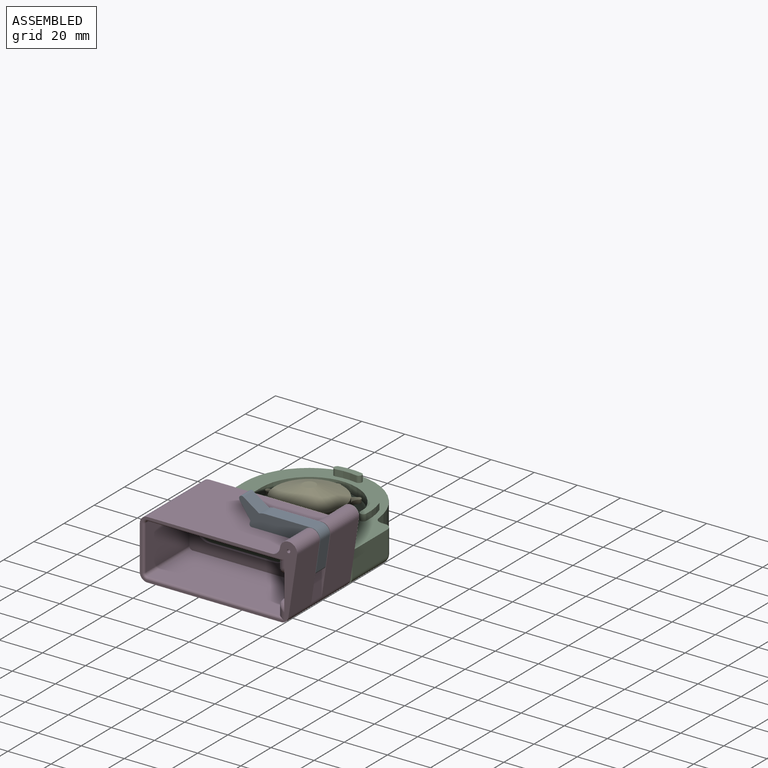
[diagram: assembled view]
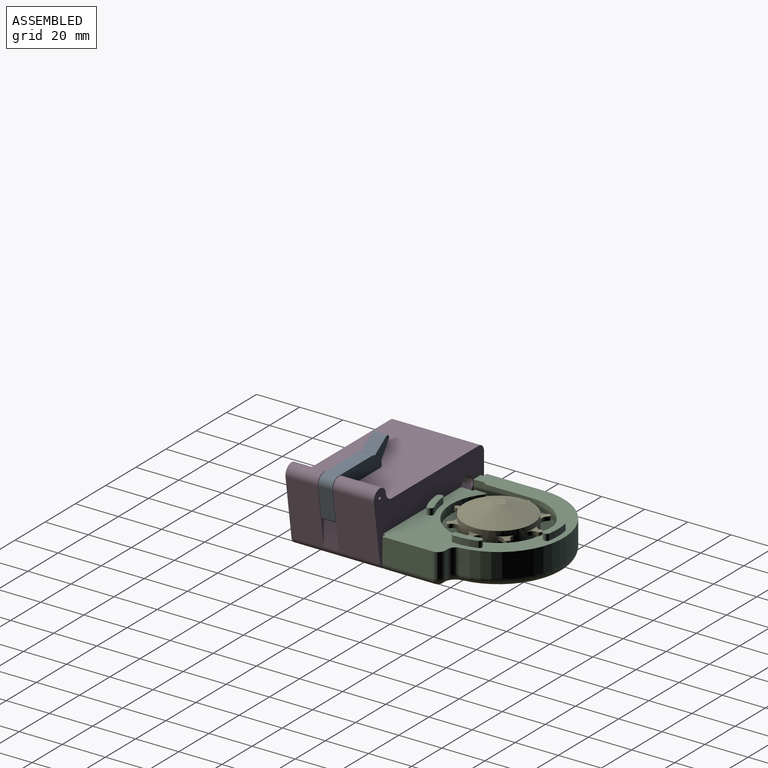
[diagram: assembled view, second angle]
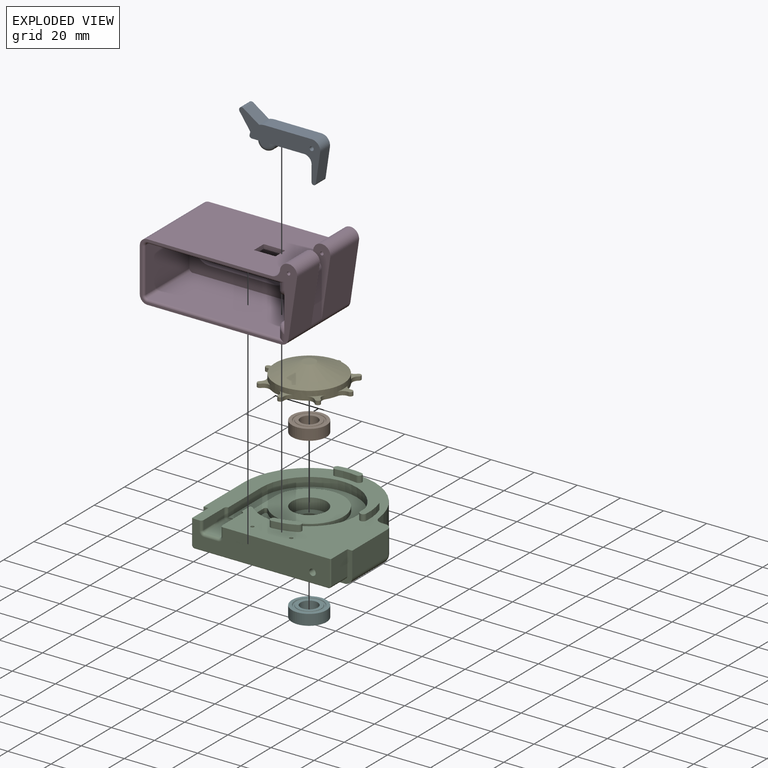
[diagram: exploded view]
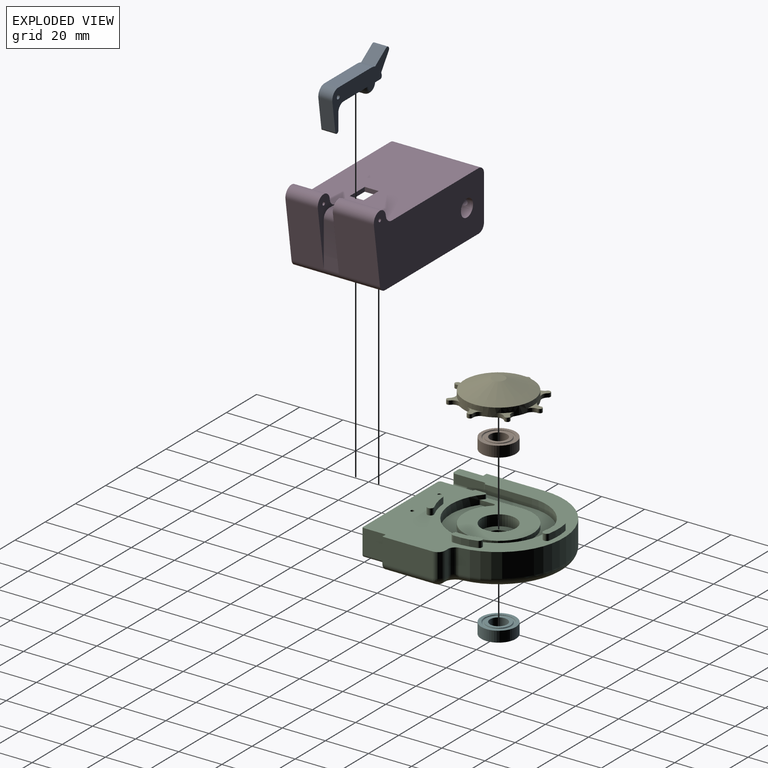
[diagram: exploded view, second angle]
ASSEMBLY  parts=6 mates=9
PART A: 20 faces, bbox 37.6x23.8x6.5 mm
  f0: plane 37.63x23.77mm, normal (0,0,1), area 292.8mm2, adj f1,f2,f3,f4,f5,f6,f7,f8
  f1: plane 13.58x6.5mm, normal (-0.99,0.15,0), area 89.3mm2, adj f0,f2,f12,f17
  f2: cylinder r=4mm len=6.5mm, axis (0,0,-1), area 44.7mm2, adj f0,f1,f3,f12
  f3: plane 21.75x6.5mm, normal (0,-1,0), area 141.4mm2, adj f0,f2,f4,f12
  f4: cylinder r=7.13mm len=6.5mm, axis (0,0,-1), area 17.3mm2, adj f0,f3,f5,f12
  f5: plane 7.29x6.5mm, normal (-0.57,-0.82,0), area 57.5mm2, adj f0,f4,f6,f12
  f6: cylinder r=1.27mm len=6.5mm, axis (0,0,-1), area 22.9mm2, adj f0,f5,f7,f12
  f7: plane 7.29x6.5mm, normal (0.82,0.57,0), area 57.5mm2, adj f0,f6,f8,f12
  f8: cylinder r=7.13mm len=6.5mm, axis (0,0,-1), area 9.7mm2, adj f0,f7,f9,f12
  f9: cylinder r=1mm len=6.5mm, axis (0,0,-1), area 11.3mm2, adj f0,f8,f10,f12
  f10: plane 6.5x4.05mm, normal (0,1,0), area 15mm2, adj f0,f9,f11,f12,f18,f19
  f11: cylinder r=4mm len=8mm, axis (0,0,-1), area 31.4mm2, adj f10,f14,f18,f19
  f12: plane 37.63x23.77mm, normal (0,0,-1), area 292.8mm2, adj f1,f2,f3,f4,f5,f6,f7,f8
  f13: cylinder r=0.95mm len=6.5mm, axis (0,0,-1), area 38.9mm2, adj f0,f12
  f14: plane 16.25x6.5mm, normal (0,1,0), area 94.3mm2, adj f0,f11,f12,f16,f18,f19
  f15: plane 6.88x6.5mm, normal (1,0,0), area 44.7mm2, adj f0,f12,f16,f17
  f16: cylinder r=3.5mm len=6.5mm, axis (0,0,-1), area 39.1mm2, adj f0,f12,f14,f15
  f17: cylinder r=1mm len=6.5mm, axis (0,0,1), area 19.5mm2, adj f0,f1,f12,f15
  f18: torus R=2mm, axis (0,0,1), area 32.3mm2, adj f0,f10,f11,f14
  f19: torus R=2mm, axis (0,0,1), area 32.3mm2, adj f10,f11,f12,f14
PART B: 8 faces, bbox 16x16x5.7 mm
  f0: plane 16x16mm, normal (0,0,1), area 68.3mm2, adj f2,f4
  f1: plane 16x16mm, normal (0,0,-1), area 68.3mm2, adj f2,f3
  f2: cylinder r=8mm len=16mm, axis (0,0,-1), area 251.3mm2, adj f0,f1
  f3: torus R=6mm, axis (0,0,-1), area 59.2mm2, adj f1,f7
  f4: torus R=6mm, axis (0,0,-1), area 59.2mm2, adj f0,f5
  f5: plane 11x11mm, normal (0,0,1), area 44.8mm2, adj f4,f6
  f6: cylinder r=4mm len=8mm, axis (0,0,-1), area 125.7mm2, adj f5,f7
  f7: plane 11x11mm, normal (0,0,-1), area 44.8mm2, adj f3,f6
PART C: 75 faces, bbox 71.5x70.6x17.8 mm
  f0: plane 69x68.06mm, normal (0,0,1), area 2131.6mm2, adj f2,f3,f5,f6,f10,f16,f19,f20
  f1: plane 62x53.56mm, normal (0,0,-1), area 2566mm2, adj f15,f21,f24,f26,f27,f28,f42
  f2: plane 23.28x11.25mm, normal (1,0,0), area 261.9mm2, adj f0,f21,f22,f42
  f3: plane 11.25x1.62mm, normal (0,1,0), area 18.2mm2, adj f0,f22,f24,f25
  f4: plane 44.31x44.31mm, normal (0,0,1), area 787.6mm2, adj f5,f6,f8,f9,f10,f17,f18,f51
  f5: plane 21.96x4.13mm, normal (-1,0,0), area 56mm2, adj f0,f4,f8,f11,f16,f48
  f6: plane 21.96x4.13mm, normal (1,0,0), area 90.6mm2, adj f0,f4,f10,f50
  f7: cylinder r=4.5mm len=9mm, axis (0,0,1), area 77.8mm2, adj f13,f14
  f8: cylinder r=15.91mm len=31.81mm, axis (0,0,1), area 187.3mm2, adj f4,f5,f11,f18
  f9: plane 6.16x2.13mm, normal (1,0,0), area 13.1mm2, adj f4,f11,f17,f18
  f10: cylinder r=22.16mm len=44.31mm, axis (0,0,1), area 491.4mm2, adj f0,f4,f6,f11,f16,f17
  f11: plane 34.01x31.81mm, normal (0,0,1), area 625.2mm2, adj f5,f8,f9,f10,f12,f16,f17,f18
  f12: cylinder r=8mm len=16mm, axis (0,0,1), area 251.3mm2, adj f11,f13
  f13: plane 16x16mm, normal (0,0,1), area 137.4mm2, adj f7,f12
  f14: plane 16x16mm, normal (0,0,-1), area 137.4mm2, adj f7,f15
  f15: cylinder r=8mm len=16mm, axis (0,0,-1), area 251.3mm2, adj f1,f14
  f16: cylinder r=0.8mm len=2mm, axis (0,0,1), area 3.7mm2, adj f0,f5,f10,f11
  f17: cylinder r=0.8mm len=2.13mm, axis (0,0,1), area 1.6mm2, adj f4,f9,f10,f11
  f18: cylinder r=0.8mm len=2.13mm, axis (0,0,1), area 4.1mm2, adj f4,f8,f9,f11
  f19: plane 26.78x11.25mm, normal (-1,0,0), area 301.3mm2, adj f0,f20,f27,f42
  f20: cylinder r=30.28mm len=60.4mm, axis (0,0,1), area 1034.9mm2, adj f0,f19,f25,f28
  f21: cylinder r=3.5mm len=23.28mm, axis (0,1,0), area 128mm2, adj f1,f2,f23,f42
  f22: cylinder r=3.5mm len=11.25mm, axis (0,0,-1), area 61.9mm2, adj f0,f2,f3,f23
  f23: sphere r=3.5mm, area 19.2mm2, adj f21,f22,f24
  f24: cylinder r=3.5mm len=3.5mm, axis (1,0,0), area 8.9mm2, adj f1,f3,f23,f26
  f25: cylinder r=3.5mm len=11.25mm, axis (0,0,1), area 57.8mm2, adj f0,f3,f20,f26
  f26: torus R=7mm, axis (0,0,1), area 38.5mm2, adj f1,f24,f25,f28
  f27: cylinder r=3.5mm len=26.78mm, axis (0,1,0), area 147.2mm2, adj f1,f19,f28,f42
  f28: torus R=26.78mm, axis (0,0,1), area 484.5mm2, adj f1,f20,f26,f27
  f29: plane 63.7x12.1mm, normal (0,-1,0), area 694.9mm2, adj f0,f36,f37,f38,f39,f40,f41,f53
  f30: plane 11.25x10.6mm, normal (1,0,0), area 119.3mm2, adj f0,f34,f41,f42
  f31: plane 11.25x10.6mm, normal (-1,0,0), area 119.3mm2, adj f0,f32,f37,f42
  f32: cylinder r=1.25mm len=10.6mm, axis (0,1,0), area 20.8mm2, adj f31,f33,f38,f42
  f33: plane 62x10.6mm, normal (0,0,-1), area 653.2mm2, adj f32,f34,f39,f42,f43,f44
  f34: cylinder r=1.25mm len=10.6mm, axis (0,1,0), area 20.8mm2, adj f30,f33,f40,f42
  f35: plane 3x3mm, normal (0,-1,0), area 7.1mm2, adj f36
  f36: cylinder r=1.5mm len=12mm, axis (0,-1,0), area 113.1mm2, adj f29,f35
  f37: cylinder r=0.4mm len=11.25mm, axis (0,0,1), area 7.1mm2, adj f0,f29,f31,f38
  f38: torus R=0.85mm, axis (0,1,0), area 1.1mm2, adj f29,f32,f37,f39
  f39: cylinder r=0.4mm len=62mm, axis (-1,0,0), area 39mm2, adj f29,f33,f38,f40
  f40: torus R=0.85mm, axis (0,1,0), area 1.1mm2, adj f29,f34,f39,f41
  f41: cylinder r=0.4mm len=11.25mm, axis (0,0,-1), area 7.1mm2, adj f0,f29,f30,f40
  f42: plane 69x14.75mm, normal (0,-1,0), area 206.9mm2, adj f0,f1,f2,f19,f21,f27,f30,f31
  f43: cylinder r=0.79mm len=12.5mm, axis (0,0,-1), area 62.3mm2, adj f0,f33
  f44: cylinder r=0.79mm len=12.5mm, axis (0,0,-1), area 62.3mm2, adj f0,f33
  f45: plane 13.48x4.13mm, normal (1,0,0), area 55.6mm2, adj f0,f50,f56,f59
  f46: plane 13.48x6.25mm, normal (0,0,1), area 84.2mm2, adj f51,f52,f56,f57
  f47: plane 13.48x4.13mm, normal (-1,0,0), area 55.6mm2, adj f0,f48,f52,f53
  f48: cylinder r=1.18mm len=4.13mm, axis (0,0,-1), area 7.6mm2, adj f0,f5,f47,f49
  f49: sphere r=1.18mm, area 2.2mm2, adj f48,f51,f52
  f50: cylinder r=1.18mm len=4.13mm, axis (0,0,1), area 7.6mm2, adj f0,f6,f45,f54
  f51: cylinder r=1.18mm len=6.25mm, axis (-1,0,0), area 11.5mm2, adj f4,f46,f49,f54
  f52: cylinder r=1.18mm len=13.48mm, axis (0,-1,0), area 24.9mm2, adj f46,f47,f49,f55
  f53: cylinder r=1.18mm len=4.13mm, axis (0,0,1), area 7.6mm2, adj f0,f29,f47,f55
  f54: sphere r=1.18mm, area 2.2mm2, adj f50,f51,f56
  f55: torus R=2.35mm, axis (0,1,0), area 4.6mm2, adj f29,f52,f53,f57
  f56: cylinder r=1.18mm len=13.48mm, axis (0,1,0), area 24.9mm2, adj f45,f46,f54,f58
  f57: cylinder r=1.18mm len=6.25mm, axis (1,0,0), area 11.5mm2, adj f29,f46,f55,f58
  f58: torus R=2.35mm, axis (0,1,0), area 4.6mm2, adj f29,f56,f57,f59
  f59: cylinder r=1.18mm len=4.13mm, axis (0,0,-1), area 7.6mm2, adj f0,f29,f45,f58
  f60: cylinder r=24.72mm len=9.43mm, axis (0,0,-1), area 28.5mm2, adj f0,f61,f63,f64
  f61: cylinder r=1.5mm len=3mm, axis (0,0,-1), area 14.1mm2, adj f0,f60,f62,f64
  f62: cylinder r=27.72mm len=10.57mm, axis (0,0,-1), area 31.9mm2, adj f0,f61,f63,f64
  f63: cylinder r=1.5mm len=3mm, axis (0,0,-1), area 14.1mm2, adj f0,f60,f62,f64
  f64: plane 13x3.48mm, normal (0,0,1), area 37.3mm2, adj f60,f61,f62,f63
  f65: cylinder r=24.72mm len=9.35mm, axis (0,0,-1), area 28.5mm2, adj f0,f66,f68,f69
  f66: cylinder r=1.5mm len=3mm, axis (0,0,-1), area 14.1mm2, adj f0,f65,f67,f69
  f67: cylinder r=27.72mm len=10.48mm, axis (0,0,-1), area 31.9mm2, adj f0,f66,f68,f69
  f68: cylinder r=1.5mm len=3mm, axis (0,0,-1), area 14.1mm2, adj f0,f65,f67,f69
  f69: plane 12.91x4.35mm, normal (0,0,1), area 37.3mm2, adj f65,f66,f67,f68
  f70: cylinder r=24.72mm len=9.11mm, axis (0,0,-1), area 28.5mm2, adj f0,f71,f73,f74
  f71: cylinder r=1.5mm len=3mm, axis (0,0,-1), area 14.1mm2, adj f0,f70,f72,f74
  f72: cylinder r=27.72mm len=10.21mm, axis (0,0,-1), area 31.9mm2, adj f0,f71,f73,f74
  f73: cylinder r=1.5mm len=3mm, axis (0,0,-1), area 14.1mm2, adj f0,f70,f72,f74
  f74: plane 12.66x5.59mm, normal (0,0,1), area 37.3mm2, adj f70,f71,f72,f73
PART D: 56 faces, bbox 73x34.6x41 mm
  f0: plane 27.06x19mm, normal (-0.99,0.15,0), area 519.7mm2, adj f2,f6,f47,f55
  f1: cylinder r=4mm len=19mm, axis (0,0,-1), area 111.1mm2, adj f2,f5,f47,f55
  f2: cylinder r=4mm len=19mm, axis (0,0,-1), area 241.6mm2, adj f0,f1,f47,f55
  f3: cylinder r=0.79mm len=19mm, axis (0,0,-1), area 94.8mm2, adj f47,f55
  f4: cylinder r=0.79mm len=15mm, axis (0,0,-1), area 74.8mm2, adj f25,f54
  f5: plane 62x41mm, normal (0,-1,0), area 2325.6mm2, adj f1,f9,f10,f25,f31,f32,f33,f34
  f6: cylinder r=3.5mm len=41mm, axis (0,0,-1), area 208mm2, adj f0,f8,f13,f25,f47,f52,f54,f55
  f7: plane 60.95x29mm, normal (0,1,0), area 1668.8mm2, adj f21,f22,f26,f31,f32,f33,f34,f37
  f8: plane 20.5x7mm, normal (-1,0,0), area 143.5mm2, adj f6,f9,f54,f55
  f9: cylinder r=3.5mm len=7mm, axis (0,0,-1), area 38.5mm2, adj f5,f8,f54,f55
  f10: cylinder r=3.5mm len=41mm, axis (0,0,-1), area 225.4mm2, adj f5,f11,f25,f47
  f11: plane 41x20.5mm, normal (1,0,0), area 821.6mm2, adj f10,f12,f25,f47,f53
  f12: cylinder r=3.5mm len=41mm, axis (0,0,-1), area 225.4mm2, adj f11,f13,f25,f47
  f13: plane 62x41mm, normal (0,1,0), area 2542mm2, adj f6,f12,f25,f47
  f14: plane 30x19mm, normal (1,0,0), area 351mm2, adj f15,f24,f25,f26,f35,f38
  f15: plane 26.25x2.25mm, normal (0,-1,0), area 59.1mm2, adj f14,f16,f26,f38
  f16: cylinder r=1.5mm len=26.25mm, axis (0,0,-1), area 61.9mm2, adj f15,f17,f26,f39
  f17: plane 26.25x4.5mm, normal (1,0,0), area 118.1mm2, adj f16,f18,f26,f40
  f18: plane 60.95x29mm, normal (0,-1,0), area 1733.8mm2, adj f17,f19,f26,f40,f45
  f19: cylinder r=1.5mm len=29mm, axis (0,0,-1), area 68.3mm2, adj f18,f20,f26,f44
  f20: plane 29x20.5mm, normal (-1,0,0), area 594.5mm2, adj f19,f21,f26,f43
  f21: cylinder r=1.5mm len=29mm, axis (0,0,-1), area 68.3mm2, adj f7,f20,f26,f42
  f22: plane 26.25x4.5mm, normal (1,0,0), area 118.1mm2, adj f7,f23,f26,f37
  f23: cylinder r=1.5mm len=26.25mm, axis (0,0,-1), area 61.9mm2, adj f22,f24,f26,f36
  f24: plane 26.25x2.25mm, normal (0,1,0), area 59.1mm2, adj f14,f23,f26,f35
  f25: plane 73x34.63mm, normal (0,0,1), area 303.6mm2, adj f4,f5,f6,f10,f11,f12,f13,f14
  f26: plane 65x23.5mm, normal (0,0,1), area 934.4mm2, adj f7,f14,f15,f16,f17,f18,f19,f20
  f27: cylinder r=6.75mm len=13.5mm, axis (0,0,1), area 63.6mm2, adj f26,f28,f30,f46
  f28: plane 30x3mm, normal (0,-1,0), area 90mm2, adj f26,f27,f29,f46
  f29: cylinder r=6.75mm len=13.5mm, axis (0,0,1), area 63.6mm2, adj f26,f28,f30,f46
  f30: plane 30x3mm, normal (0,1,0), area 90mm2, adj f26,f27,f29,f46
  f31: plane 10x2mm, normal (0,0,1), area 20mm2, adj f5,f7,f32,f33
  f32: plane 6.5x2mm, normal (1,0,0), area 13mm2, adj f5,f7,f31,f34
  f33: plane 6.5x2mm, normal (-1,0,0), area 13mm2, adj f5,f7,f31,f34
  f34: plane 10x2mm, normal (0,0,-1), area 20mm2, adj f5,f7,f32,f33
  f35: cylinder r=3.75mm len=3.75mm, axis (1,0,0), area 8.4mm2, adj f14,f24,f36
  f36: bspline ~4.43x3.75mm, area 9.4mm2, adj f23,f35,f37
  f37: cylinder r=3.75mm len=5.5mm, axis (0,-1,0), area 22.8mm2, adj f7,f22,f25,f36,f41
  f38: cylinder r=3.75mm len=3.75mm, axis (-1,0,0), area 8.4mm2, adj f14,f15,f39
  f39: bspline ~4.43x3.75mm, area 9.4mm2, adj f16,f38,f40
  f40: cylinder r=3.75mm len=5.5mm, axis (0,-1,0), area 22.8mm2, adj f17,f18,f25,f39,f45
  f41: cylinder r=1mm len=63.5mm, axis (1,0,0), area 97.6mm2, adj f7,f25,f37,f42
  f42: torus R=2.5mm, axis (0,0,1), area 4.6mm2, adj f21,f25,f41,f43
  f43: cylinder r=1mm len=20.5mm, axis (0,1,0), area 32.2mm2, adj f20,f25,f42,f44
  f44: torus R=2.5mm, axis (0,0,1), area 4.6mm2, adj f19,f25,f43,f45
  f45: cylinder r=1mm len=63.5mm, axis (-1,0,0), area 97.6mm2, adj f18,f25,f40,f44
  f46: plane 43.5x13.5mm, normal (0,0,1), area 497.9mm2, adj f27,f28,f29,f30,f48
  f47: plane 73x34.63mm, normal (0,0,-1), area 1933.7mm2, adj f0,f1,f2,f3,f5,f6,f10,f11
  f48: cylinder r=4mm len=8mm, axis (0,0,1), area 194.3mm2, adj f46,f47,f49
  f49: cylinder r=1.45mm len=6.52mm, axis (1,0,0), area 58.2mm2, adj f48,f53
  f50: cylinder r=4mm len=15mm, axis (0,0,-1), area 87.7mm2, adj f5,f25,f51,f54
  f51: cylinder r=4mm len=15mm, axis (0,0,-1), area 190.8mm2, adj f25,f50,f52,f54
  f52: plane 27.06x15mm, normal (-0.99,0.15,0), area 410.3mm2, adj f6,f25,f51,f54
  f53: cone r=1.45mm half-angle=45deg, axis (1,0,0), area 17.3mm2, adj f11,f49
  f54: plane 31.64x11.95mm, normal (0,0,-1), area 96.9mm2, adj f4,f5,f6,f8,f9,f50,f51,f52
  f55: plane 31.64x11.95mm, normal (0,0,1), area 96.9mm2, adj f0,f1,f2,f3,f5,f6,f8,f9
PART E: 40 faces, bbox 40.5x40.5x9.1 mm
  f0: plane 40.46x40.46mm, normal (0,0,-1), area 851.2mm2, adj f8,f9,f10,f11,f12,f13,f14,f15
  f1: plane 6.24x6.24mm, normal (0,0,1), area 12.4mm2, adj f8,f15,f16,f17
  f2: plane 7.18x4.74mm, normal (0,0,1), area 12.4mm2, adj f8,f18,f19,f20
  f3: plane 6.24x6.24mm, normal (0,0,1), area 12.4mm2, adj f8,f21,f22,f23
  f4: plane 7.18x4.74mm, normal (0,0,1), area 12.4mm2, adj f8,f24,f25,f26
  f5: plane 6.24x6.24mm, normal (0,0,1), area 12.4mm2, adj f8,f27,f28,f29
  f6: plane 7.18x4.74mm, normal (0,0,1), area 12.4mm2, adj f8,f30,f31,f32
  f7: plane 7.18x4.74mm, normal (0,0,1), area 12.4mm2, adj f12,f13,f14,f34
  f8: cylinder r=15.91mm len=31.81mm, axis (0,0,-1), area 291.1mm2, adj f0,f1,f2,f3,f4,f5,f6,f9
  f9: cylinder r=3.12mm len=4.1mm, axis (0,0,-1), area 8.2mm2, adj f0,f8,f10,f33
  f10: cylinder r=1.2mm len=2.14mm, axis (0,0,-1), area 7.3mm2, adj f0,f9,f11,f33
  f11: cylinder r=3.12mm len=4.1mm, axis (0,0,-1), area 8.2mm2, adj f0,f8,f10,f33
  f12: cylinder r=3.12mm len=3.4mm, axis (0,0,-1), area 8.2mm2, adj f0,f7,f8,f13
  f13: cylinder r=1.2mm len=2.4mm, axis (0,0,-1), area 7.3mm2, adj f0,f7,f12,f14
  f14: cylinder r=3.12mm len=3.4mm, axis (0,0,-1), area 8.2mm2, adj f0,f7,f8,f13
  f15: cylinder r=3.12mm len=4.1mm, axis (0,0,-1), area 8.2mm2, adj f0,f1,f8,f16
  f16: cylinder r=1.2mm len=2.14mm, axis (0,0,-1), area 7.3mm2, adj f0,f1,f15,f17
  f17: cylinder r=3.12mm len=4.1mm, axis (0,0,-1), area 8.2mm2, adj f0,f1,f8,f16
  f18: cylinder r=3.12mm len=3.4mm, axis (0,0,-1), area 8.2mm2, adj f0,f2,f8,f19
  f19: cylinder r=1.2mm len=2.4mm, axis (0,0,-1), area 7.3mm2, adj f0,f2,f18,f20
  f20: cylinder r=3.12mm len=3.4mm, axis (0,0,-1), area 8.2mm2, adj f0,f2,f8,f19
  f21: cylinder r=3.12mm len=4.1mm, axis (0,0,-1), area 8.2mm2, adj f0,f3,f8,f22
  f22: cylinder r=1.2mm len=2.14mm, axis (0,0,-1), area 7.3mm2, adj f0,f3,f21,f23
  f23: cylinder r=3.12mm len=4.1mm, axis (0,0,-1), area 8.2mm2, adj f0,f3,f8,f22
  f24: cylinder r=3.12mm len=3.4mm, axis (0,0,-1), area 8.2mm2, adj f0,f4,f8,f25
  f25: cylinder r=1.2mm len=2.4mm, axis (0,0,-1), area 7.3mm2, adj f0,f4,f24,f26
  f26: cylinder r=3.12mm len=3.4mm, axis (0,0,-1), area 8.2mm2, adj f0,f4,f8,f25
  f27: cylinder r=3.12mm len=4.1mm, axis (0,0,-1), area 8.2mm2, adj f0,f5,f8,f28
  f28: cylinder r=1.2mm len=2.14mm, axis (0,0,-1), area 7.3mm2, adj f0,f5,f27,f29
  f29: cylinder r=3.12mm len=4.1mm, axis (0,0,-1), area 8.2mm2, adj f0,f5,f8,f28
  f30: cylinder r=3.12mm len=3.4mm, axis (0,0,-1), area 8.2mm2, adj f0,f6,f8,f31
  f31: cylinder r=1.2mm len=2.4mm, axis (0,0,-1), area 7.3mm2, adj f0,f6,f30,f32
  f32: cylinder r=3.12mm len=3.4mm, axis (0,0,-1), area 8.2mm2, adj f0,f6,f8,f31
  f33: plane 6.24x6.24mm, normal (0,0,1), area 12.4mm2, adj f8,f9,f10,f11
  f34: extruded ~7.18x2.33mm, area 16.8mm2, adj f7,f8,f39
  f35: plane 6.55x4.13mm, normal (-1,0,0), area 27mm2, adj f0,f36,f37
  f36: cylinder r=4mm len=8mm, axis (0,0,-1), area 72.1mm2, adj f0,f35,f37
  f37: plane 8x6.3mm, normal (0,0,-1), area 42.5mm2, adj f35,f36
  f38: plane 6x6mm, normal (0,0,1), area 28.3mm2, adj f39
  f39: cone r=3mm half-angle=68.8deg, axis (0,0,-1), area 793.5mm2, adj f8,f34,f38
PART F: same geometry as B
PLACE A rot(axis=(0,-0.71,0.71),180deg) t=(-168.87,-134.81,30.95)mm
PLACE B t=(-173.09,-98.85,24.95)mm
PLACE C t=(-173.09,-98.85,17.2)mm
PLACE D rot(axis=(0,-0.71,0.71),180deg) t=(-168.87,-134.81,30.95)mm
PLACE E t=(-173.09,-98.85,17.2)mm
PLACE F t=(-173.09,-98.85,17.2)mm
MATE planar B.f2 <-> C.f12  axis (0,0,-1) through (-173.09,-98.85,24.95)mm
MATE cylindrical E.f36 <-> B.f2  axis (0,0,-1) through (-173.09,-98.85,29.95)mm
MATE planar A.f0 <-> D.f34  axis (0,-1,0) through (-147.21,-152.56,47.57)mm
MATE cylindrical B.f6 <-> C.f12  axis (0,0,1) through (-173.09,-98.85,29.95)mm
MATE parallel A.f14 <-> D.f5  axis (0,0,-1) through (-145.13,-149.31,44.7)mm
MATE planar E.f0 <-> C.f11  axis (0,0,-1) through (-164.67,-112.35,29.95)mm
MATE cylindrical A.f2 <-> D.f2  axis (0,1,0) through (-134.37,-149.31,47.84)mm
MATE cylindrical F.f2 <-> C.f15  axis (0,0,-1) through (-173.09,-98.85,19.7)mm
MATE planar F.f2 <-> C.f15  axis (0,0,1) through (-173.09,-98.85,22.2)mm
